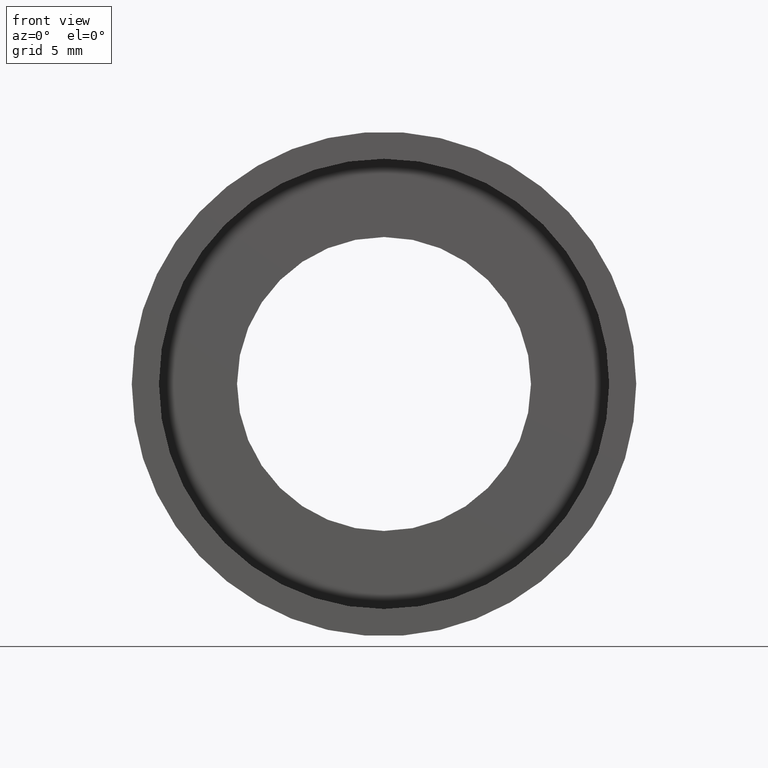
[diagram: clean part render]
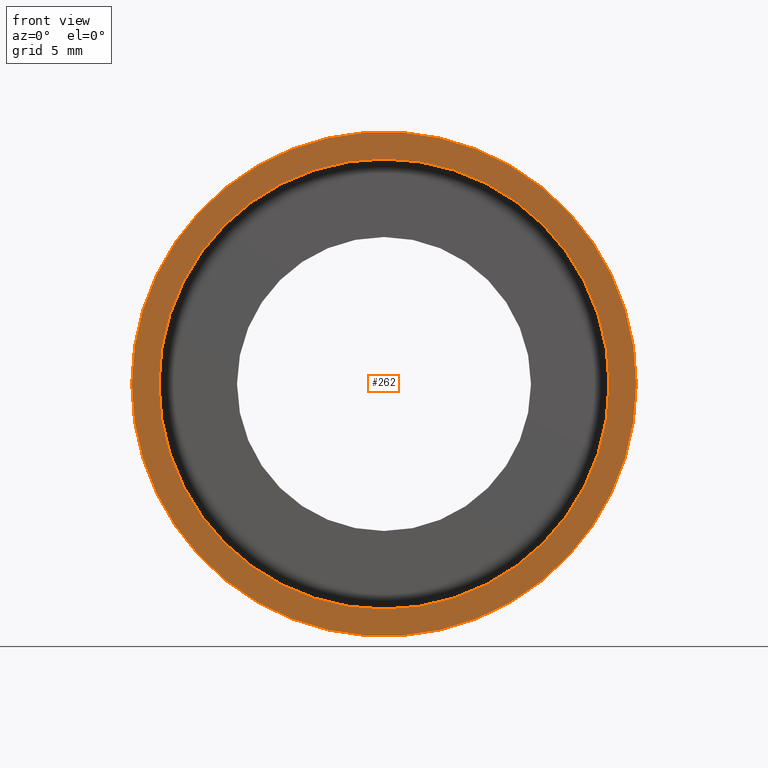
[diagram: same view with one face highlighted and labeled with its STEP entity id]
A machine part, front view. The second image highlights one B-rep face of the part: STEP entity #262.
In plain terms, the highlighted planar face has unit normal (-0, 1, 0).
Its self-contained STEP definition (entity closure, byte-faithful):
#13 = CIRCLE ( 'NONE', #619, 17.00000000000000000 ) ;
#16 = EDGE_CURVE ( 'NONE', #509, #100, #226, .T. ) ;
#30 = ORIENTED_EDGE ( 'NONE', *, *, #16, .T. ) ;
#73 = DIRECTION ( 'NONE',  ( -1.000000000000000000, -1.224646799147351500E-016, 0.0000000000000000000 ) ) ;
#79 = CARTESIAN_POINT ( 'NONE',  ( 2.067940818438636500E-015, -3.469446951953614200E-015, 0.0000000000000000000 ) ) ;
#100 = VERTEX_POINT ( 'NONE', #236 ) ;
#166 = AXIS2_PLACEMENT_3D ( 'NONE', #546, #559, #73 ) ;
#174 = EDGE_CURVE ( 'NONE', #535, #303, #399, .T. ) ;
#176 = EDGE_LOOP ( 'NONE', ( #403, #250 ) ) ;
#204 = DIRECTION ( 'NONE',  ( -1.224646799147351000E-016, 1.000000000000000000, 0.0000000000000000000 ) ) ;
#226 = CIRCLE ( 'NONE', #166, 17.00000000000000000 ) ;
#236 = CARTESIAN_POINT ( 'NONE',  ( 17.00000000000000400, -1.387547393403117700E-015, 2.081899558550500700E-015 ) ) ;
#239 = CARTESIAN_POINT ( 'NONE',  ( 2.067940818438636500E-015, -3.469446951953614200E-015, 0.0000000000000000000 ) ) ;
#250 = ORIENTED_EDGE ( 'NONE', *, *, #530, .F. ) ;
#262 = ADVANCED_FACE ( 'NONE', ( #593, #345 ), #460, .F. ) ;
#281 = AXIS2_PLACEMENT_3D ( 'NONE', #363, #346, #366 ) ;
#283 = DIRECTION ( 'NONE',  ( -1.224646799147351000E-016, 1.000000000000000000, -0.0000000000000000000 ) ) ;
#303 = VERTEX_POINT ( 'NONE', #318 ) ;
#318 = CARTESIAN_POINT ( 'NONE',  ( 19.05000000000000100, -1.136494799577911100E-015, 2.332952152375707600E-015 ) ) ;
#345 = FACE_BOUND ( 'NONE', #434, .T. ) ;
#346 = DIRECTION ( 'NONE',  ( -1.224646799147351000E-016, 1.000000000000000000, -0.0000000000000000000 ) ) ;
#363 = CARTESIAN_POINT ( 'NONE',  ( 2.067940818438636500E-015, -3.469446951953614200E-015, 0.0000000000000000000 ) ) ;
#366 = DIRECTION ( 'NONE',  ( -1.000000000000000000, -1.224646799147351000E-016, 0.0000000000000000000 ) ) ;
#396 = EDGE_CURVE ( 'NONE', #100, #509, #13, .T. ) ;
#399 = CIRCLE ( 'NONE', #487, 19.04999999999999700 ) ;
#403 = ORIENTED_EDGE ( 'NONE', *, *, #174, .F. ) ;
#408 = CIRCLE ( 'NONE', #281, 19.04999999999999700 ) ;
#425 = ORIENTED_EDGE ( 'NONE', *, *, #396, .T. ) ;
#434 = EDGE_LOOP ( 'NONE', ( #30, #425 ) ) ;
#460 = PLANE ( 'NONE',  #484 ) ;
#472 = DIRECTION ( 'NONE',  ( -1.000000000000000000, -1.224646799147351000E-016, 0.0000000000000000000 ) ) ;
#484 = AXIS2_PLACEMENT_3D ( 'NONE', #524, #204, #472 ) ;
#487 = AXIS2_PLACEMENT_3D ( 'NONE', #79, #283, #553 ) ;
#509 = VERTEX_POINT ( 'NONE', #544 ) ;
#521 = DIRECTION ( 'NONE',  ( -1.000000000000000000, -1.224646799147351500E-016, 0.0000000000000000000 ) ) ;
#524 = CARTESIAN_POINT ( 'NONE',  ( 19.05000000000000100, -8.225062277234867800E-016, 0.0000000000000000000 ) ) ;
#530 = EDGE_CURVE ( 'NONE', #303, #535, #408, .T. ) ;
#535 = VERTEX_POINT ( 'NONE', #551 ) ;
#537 = DIRECTION ( 'NONE',  ( -1.224646799147351000E-016, 1.000000000000000000, -0.0000000000000000000 ) ) ;
#544 = CARTESIAN_POINT ( 'NONE',  ( -16.99999999999999600, -5.551346510504111700E-015, 0.0000000000000000000 ) ) ;
#546 = CARTESIAN_POINT ( 'NONE',  ( 2.067940818438636500E-015, -3.469446951953614200E-015, 0.0000000000000000000 ) ) ;
#551 = CARTESIAN_POINT ( 'NONE',  ( -19.04999999999999400, -5.802399104329317500E-015, 0.0000000000000000000 ) ) ;
#553 = DIRECTION ( 'NONE',  ( -1.000000000000000000, -1.224646799147351000E-016, 0.0000000000000000000 ) ) ;
#559 = DIRECTION ( 'NONE',  ( -1.224646799147351000E-016, 1.000000000000000000, -0.0000000000000000000 ) ) ;
#593 = FACE_OUTER_BOUND ( 'NONE', #176, .T. ) ;
#619 = AXIS2_PLACEMENT_3D ( 'NONE', #239, #537, #521 ) ;